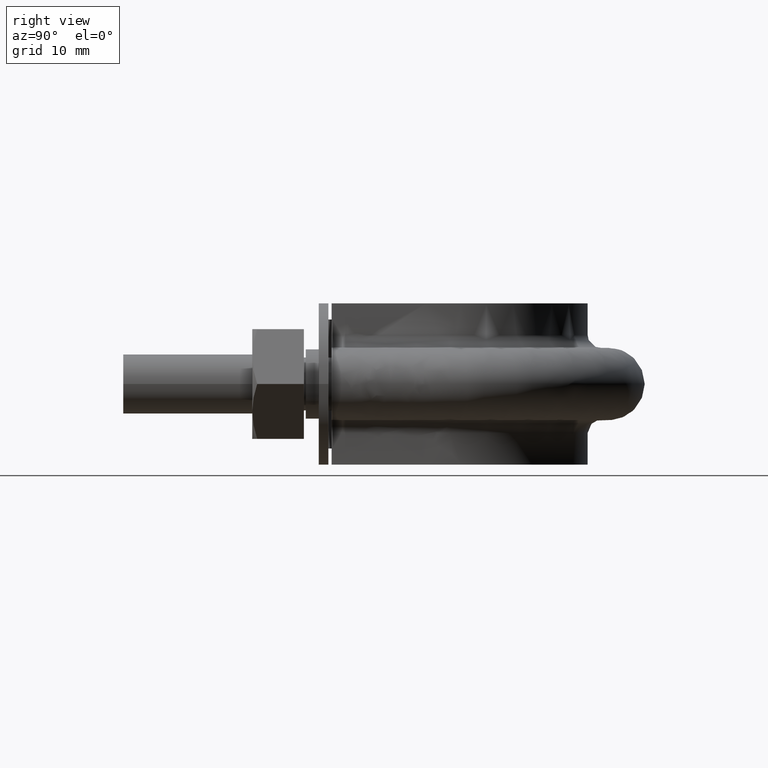
[diagram: clean part render]
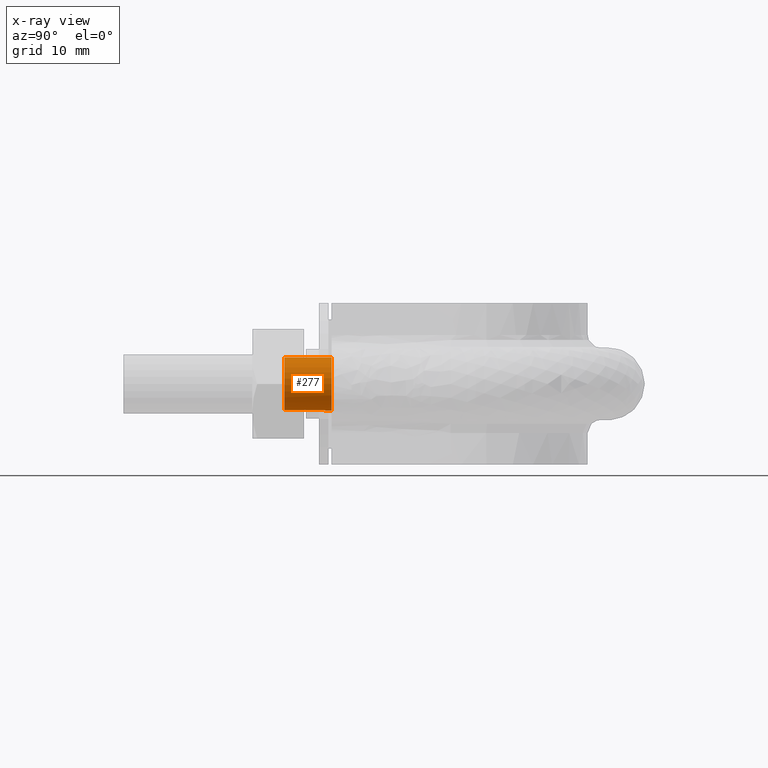
[diagram: x-ray — body ghosted, one internal face saturated and labeled with its STEP entity id]
A machine part, right view, then the same camera in x-ray: the body is ghosted and one INTERNAL B-rep face — a face not visible from any outside direction — is saturated and labeled: STEP entity #277.
In plain terms, the highlighted cylindrical surface (bore or boss wall) has radius 4.1 mm, axis along (0, 1, 0).
Its self-contained STEP definition (entity closure, byte-faithful):
#277 = ADVANCED_FACE( '', ( #402, #403 ), #404, .T. );
#402 = FACE_OUTER_BOUND( '', #1330, .T. );
#403 = FACE_OUTER_BOUND( '', #1331, .T. );
#404 = CYLINDRICAL_SURFACE( '', #1332, 4.10000000000000 );
#1330 = EDGE_LOOP( '', ( #1649, #1650, #1651, #1652, #1653, #1654, #1655 ) );
#1331 = EDGE_LOOP( '', ( #1656 ) );
#1332 = AXIS2_PLACEMENT_3D( '', #1657, #1658, #1659 );
#1649 = ORIENTED_EDGE( '', *, *, #2415, .T. );
#1650 = ORIENTED_EDGE( '', *, *, #2416, .T. );
#1651 = ORIENTED_EDGE( '', *, *, #2417, .T. );
#1652 = ORIENTED_EDGE( '', *, *, #2418, .T. );
#1653 = ORIENTED_EDGE( '', *, *, #2419, .T. );
#1654 = ORIENTED_EDGE( '', *, *, #2420, .T. );
#1655 = ORIENTED_EDGE( '', *, *, #2421, .T. );
#1656 = ORIENTED_EDGE( '', *, *, #2422, .T. );
#1657 = CARTESIAN_POINT( '', ( 24.5000000000000, 32.3000000000000, 9.84277356884735E-015 ) );
#1658 = DIRECTION( '', ( 2.44921270764475E-016, 1.00000000000000, 3.06151588455594E-016 ) );
#1659 = DIRECTION( '', ( 1.00000000000000, -2.44921270764475E-016, -3.74915180455534E-032 ) );
#2415 = EDGE_CURVE( '', #2667, #2665, #2676, .T. );
#2416 = EDGE_CURVE( '', #2665, #2663, #2677, .T. );
#2417 = EDGE_CURVE( '', #2663, #2662, #2678, .T. );
#2418 = EDGE_CURVE( '', #2662, #2673, #2679, .T. );
#2419 = EDGE_CURVE( '', #2673, #2671, #2680, .T. );
#2420 = EDGE_CURVE( '', #2671, #2669, #2681, .T. );
#2421 = EDGE_CURVE( '', #2669, #2667, #2682, .T. );
#2422 = EDGE_CURVE( '', #2683, #2683, #2684, .F. );
#2662 = VERTEX_POINT( '', #3207 );
#2663 = VERTEX_POINT( '', #3208 );
#2665 = VERTEX_POINT( '', #3213 );
#2667 = VERTEX_POINT( '', #3218 );
#2669 = VERTEX_POINT( '', #3223 );
#2671 = VERTEX_POINT( '', #3228 );
#2673 = VERTEX_POINT( '', #3233 );
#2676 = CIRCLE( '', #3242, 4.10000000000000 );
#2677 = CIRCLE( '', #3243, 4.10000000000000 );
#2678 = CIRCLE( '', #3244, 4.10000000000000 );
#2679 = CIRCLE( '', #3245, 4.10000000000000 );
#2680 = CIRCLE( '', #3246, 4.10000000000000 );
#2681 = CIRCLE( '', #3247, 4.10000000000000 );
#2682 = CIRCLE( '', #3248, 4.10000000000000 );
#2683 = VERTEX_POINT( '', #3249 );
#2684 = CIRCLE( '', #3250, 4.10000000000000 );
#3207 = CARTESIAN_POINT( '', ( 20.4000000000000, 32.3000000000000, 4.39925776255788E-016 ) );
#3208 = CARTESIAN_POINT( '', ( 21.9436918123791, 32.3000000000000, 3.20550907811886 ) );
#3213 = CARTESIAN_POINT( '', ( 25.4123358292210, 32.3000000000000, 3.99720443994547 ) );
#3218 = CARTESIAN_POINT( '', ( 28.1939723584000, 32.3000000000000, 1.77892333038186 ) );
#3223 = CARTESIAN_POINT( '', ( 28.1939723583999, 32.3000000000000, -1.77892333038206 ) );
#3228 = CARTESIAN_POINT( '', ( 25.4123358292208, 32.3000000000000, -3.99720443994549 ) );
#3233 = CARTESIAN_POINT( '', ( 21.9436918123793, 32.3000000000000, -3.20550907811897 ) );
#3242 = AXIS2_PLACEMENT_3D( '', #3853, #3854, #3855 );
#3243 = AXIS2_PLACEMENT_3D( '', #3856, #3857, #3858 );
#3244 = AXIS2_PLACEMENT_3D( '', #3859, #3860, #3861 );
#3245 = AXIS2_PLACEMENT_3D( '', #3862, #3863, #3864 );
#3246 = AXIS2_PLACEMENT_3D( '', #3865, #3866, #3867 );
#3247 = AXIS2_PLACEMENT_3D( '', #3868, #3869, #3870 );
#3248 = AXIS2_PLACEMENT_3D( '', #3871, #3872, #3873 );
#3249 = CARTESIAN_POINT( '', ( 24.5000000000000, 25.0000000000000, 4.10000000000001 ) );
#3250 = AXIS2_PLACEMENT_3D( '', #3874, #3875, #3876 );
#3853 = CARTESIAN_POINT( '', ( 24.5000000000000, 32.3000000000000, 9.84277356884735E-015 ) );
#3854 = DIRECTION( '', ( -2.44921270764475E-016, -1.00000000000000, -3.06151588455594E-016 ) );
#3855 = DIRECTION( '', ( 1.00000000000000, -2.44921270764475E-016, -3.74915180455534E-032 ) );
#3856 = CARTESIAN_POINT( '', ( 24.5000000000000, 32.3000000000000, 9.84277356884735E-015 ) );
#3857 = DIRECTION( '', ( -2.44921270764475E-016, -1.00000000000000, -3.06151588455594E-016 ) );
#3858 = DIRECTION( '', ( 1.00000000000000, -2.44921270764475E-016, -3.74915180455534E-032 ) );
#3859 = CARTESIAN_POINT( '', ( 24.5000000000000, 32.3000000000000, 9.84277356884735E-015 ) );
#3860 = DIRECTION( '', ( -2.44921270764475E-016, -1.00000000000000, -3.06151588455594E-016 ) );
#3861 = DIRECTION( '', ( 1.00000000000000, -2.44921270764475E-016, -3.74915180455534E-032 ) );
#3862 = CARTESIAN_POINT( '', ( 24.5000000000000, 32.3000000000000, 9.84277356884735E-015 ) );
#3863 = DIRECTION( '', ( -2.44921270764475E-016, -1.00000000000000, -3.06151588455594E-016 ) );
#3864 = DIRECTION( '', ( 1.00000000000000, -2.44921270764475E-016, -3.74915180455534E-032 ) );
#3865 = CARTESIAN_POINT( '', ( 24.5000000000000, 32.3000000000000, 9.84277356884735E-015 ) );
#3866 = DIRECTION( '', ( -2.44921270764475E-016, -1.00000000000000, -3.06151588455594E-016 ) );
#3867 = DIRECTION( '', ( 1.00000000000000, -2.44921270764475E-016, -3.74915180455534E-032 ) );
#3868 = CARTESIAN_POINT( '', ( 24.5000000000000, 32.3000000000000, 9.84277356884735E-015 ) );
#3869 = DIRECTION( '', ( -2.44921270764475E-016, -1.00000000000000, -3.06151588455594E-016 ) );
#3870 = DIRECTION( '', ( 1.00000000000000, -2.44921270764475E-016, -3.74915180455534E-032 ) );
#3871 = CARTESIAN_POINT( '', ( 24.5000000000000, 32.3000000000000, 9.84277356884735E-015 ) );
#3872 = DIRECTION( '', ( -2.44921270764475E-016, -1.00000000000000, -3.06151588455594E-016 ) );
#3873 = DIRECTION( '', ( 1.00000000000000, -2.44921270764475E-016, -3.74915180455534E-032 ) );
#3874 = CARTESIAN_POINT( '', ( 24.5000000000000, 25.0000000000000, 7.60786697312152E-015 ) );
#3875 = DIRECTION( '', ( -2.44921270764475E-016, -1.00000000000000, -3.06151588455594E-016 ) );
#3876 = DIRECTION( '', ( -3.74915180455534E-032, -3.06151588455594E-016, 1.00000000000000 ) );